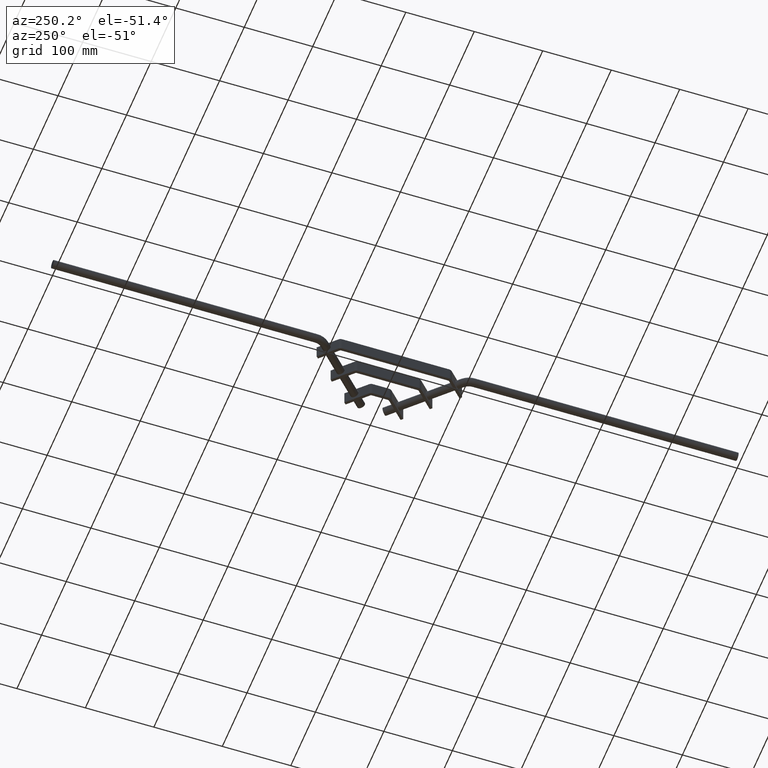
[diagram: clean part render]
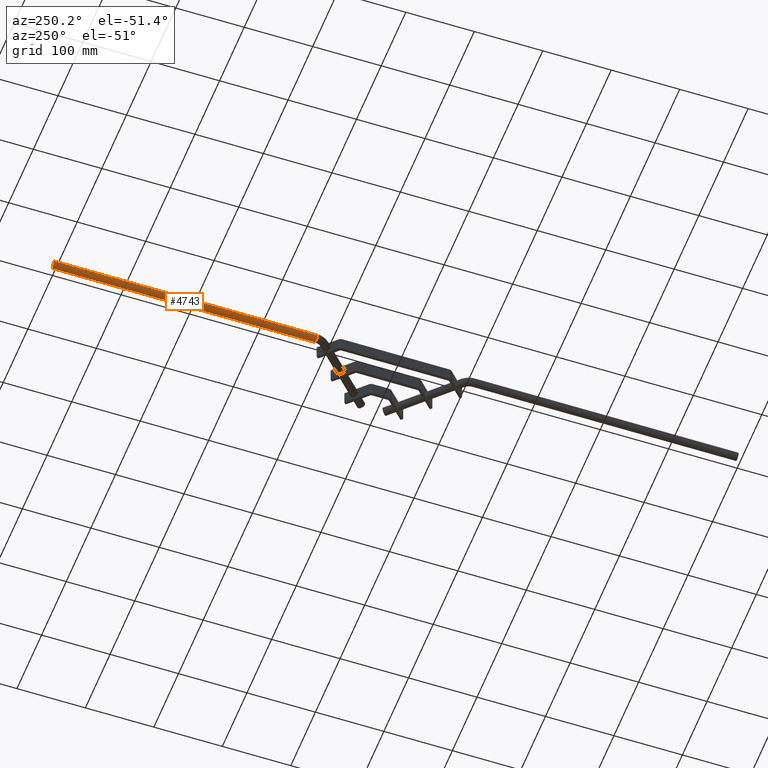
[diagram: same view with one face highlighted and labeled with its STEP entity id]
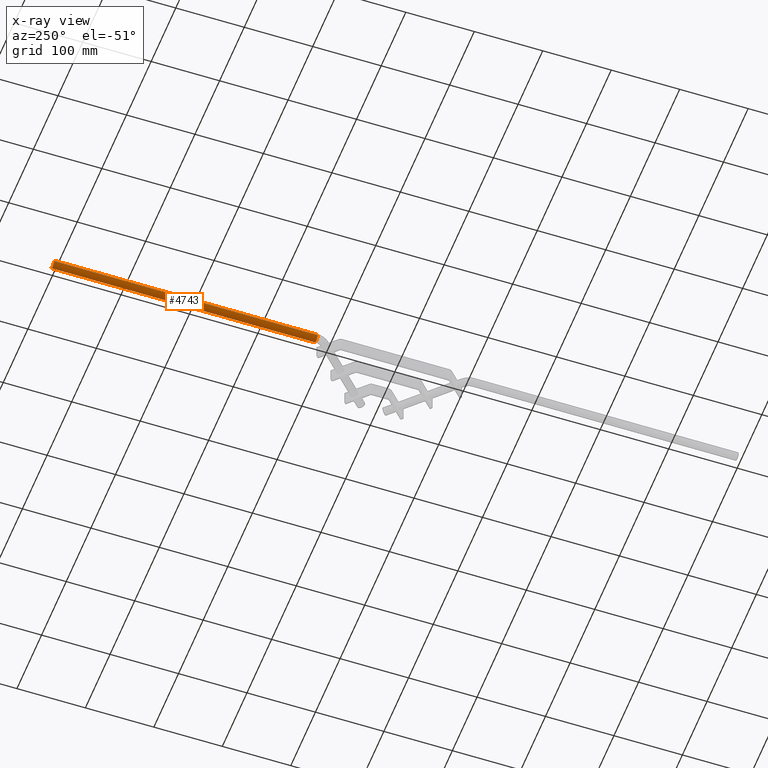
[diagram: x-ray of the same camera — body ghosted, the highlighted face saturated]
A machine part, auxiliary view. The second image highlights one B-rep face of the part: STEP entity #4743.
The next image is the same camera in x-ray: the body ghosted, the highlighted face saturated — about 0% of this face is hidden behind the body in this view.
In plain terms, the highlighted cylindrical surface (edge-blend (fillet) strip) has radius 6 mm, axis along (-0, 1, -0).
Its self-contained STEP definition (entity closure, byte-faithful):
#176 = LINE ( 'NONE', #6382, #6916 ) ;
#299 = VERTEX_POINT ( 'NONE', #997 ) ;
#666 = DIRECTION ( 'NONE',  ( -1.000000000000000000, 0.0000000000000000000, 0.0000000000000000000 ) ) ;
#738 = CYLINDRICAL_SURFACE ( 'NONE', #1814, 6.000000000000000900 ) ;
#824 = ORIENTED_EDGE ( 'NONE', *, *, #1801, .F. ) ;
#997 = CARTESIAN_POINT ( 'NONE',  ( -5.999999999999954700, 615.0000000000000000, 0.0000000000000000000 ) ) ;
#1240 = CARTESIAN_POINT ( 'NONE',  ( 6.000000000000000900, 1000.000000000000000, 7.347880794884120700E-016 ) ) ;
#1299 = ORIENTED_EDGE ( 'NONE', *, *, #2821, .T. ) ;
#1329 = CARTESIAN_POINT ( 'NONE',  ( 4.603571906427567900E-014, 615.0000000000000000, 0.0000000000000000000 ) ) ;
#1751 = AXIS2_PLACEMENT_3D ( 'NONE', #3320, #7523, #3938 ) ;
#1801 = EDGE_CURVE ( 'NONE', #2644, #5171, #3207, .T. ) ;
#1814 = AXIS2_PLACEMENT_3D ( 'NONE', #1329, #5035, #666 ) ;
#1886 = DIRECTION ( 'NONE',  ( 0.0000000000000000000, 1.000000000000000000, 0.0000000000000000000 ) ) ;
#2644 = VERTEX_POINT ( 'NONE', #7385 ) ;
#2821 = EDGE_CURVE ( 'NONE', #299, #3166, #176, .T. ) ;
#3166 = VERTEX_POINT ( 'NONE', #5624 ) ;
#3207 = LINE ( 'NONE', #5382, #7819 ) ;
#3320 = CARTESIAN_POINT ( 'NONE',  ( 0.0000000000000000000, 1000.000000000000000, 0.0000000000000000000 ) ) ;
#3421 = ORIENTED_EDGE ( 'NONE', *, *, #5157, .T. ) ;
#3675 = CIRCLE ( 'NONE', #4989, 6.000000000000000900 ) ;
#3794 = ORIENTED_EDGE ( 'NONE', *, *, #7001, .F. ) ;
#3938 = DIRECTION ( 'NONE',  ( 0.0000000000000000000, 0.0000000000000000000, 1.000000000000000000 ) ) ;
#4609 = DIRECTION ( 'NONE',  ( -1.195732962708459300E-016, 1.000000000000000000, -0.0000000000000000000 ) ) ;
#4743 = ADVANCED_FACE ( 'NONE', ( #7427 ), #738, .T. ) ;
#4989 = AXIS2_PLACEMENT_3D ( 'NONE', #5560, #1886, #6144 ) ;
#5035 = DIRECTION ( 'NONE',  ( -1.195732962708459300E-016, 1.000000000000000000, -0.0000000000000000000 ) ) ;
#5157 = EDGE_CURVE ( 'NONE', #2644, #299, #3675, .T. ) ;
#5171 = VERTEX_POINT ( 'NONE', #1240 ) ;
#5382 = CARTESIAN_POINT ( 'NONE',  ( 6.000000000000047100, 615.0000000000000000, 7.347880794884120700E-016 ) ) ;
#5560 = CARTESIAN_POINT ( 'NONE',  ( 4.603571906427567900E-014, 615.0000000000000000, 0.0000000000000000000 ) ) ;
#5624 = CARTESIAN_POINT ( 'NONE',  ( -6.000000000000001800, 1000.000000000000000, 0.0000000000000000000 ) ) ;
#6144 = DIRECTION ( 'NONE',  ( 0.0000000000000000000, 0.0000000000000000000, 1.000000000000000000 ) ) ;
#6382 = CARTESIAN_POINT ( 'NONE',  ( -5.999999999999954700, 615.0000000000000000, 0.0000000000000000000 ) ) ;
#6568 = DIRECTION ( 'NONE',  ( -1.195732962708459300E-016, 1.000000000000000000, -0.0000000000000000000 ) ) ;
#6742 = EDGE_LOOP ( 'NONE', ( #824, #3421, #1299, #3794 ) ) ;
#6916 = VECTOR ( 'NONE', #4609, 1000.000000000000000 ) ;
#7001 = EDGE_CURVE ( 'NONE', #5171, #3166, #7608, .T. ) ;
#7385 = CARTESIAN_POINT ( 'NONE',  ( 6.000000000000047100, 615.0000000000000000, 7.347880794884148300E-016 ) ) ;
#7427 = FACE_OUTER_BOUND ( 'NONE', #6742, .T. ) ;
#7523 = DIRECTION ( 'NONE',  ( 0.0000000000000000000, 1.000000000000000000, 0.0000000000000000000 ) ) ;
#7608 = CIRCLE ( 'NONE', #1751, 6.000000000000000900 ) ;
#7819 = VECTOR ( 'NONE', #6568, 1000.000000000000000 ) ;